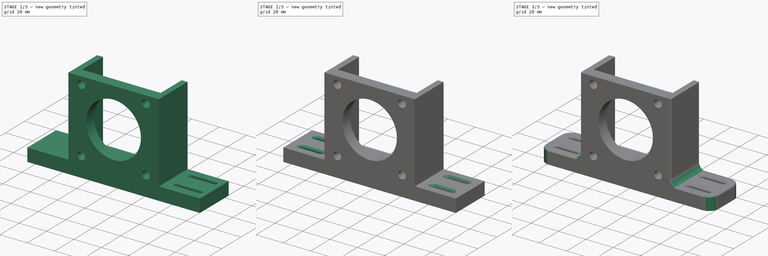
[diagram: build sequence overview — one tinted view per stage of 3, left to right]
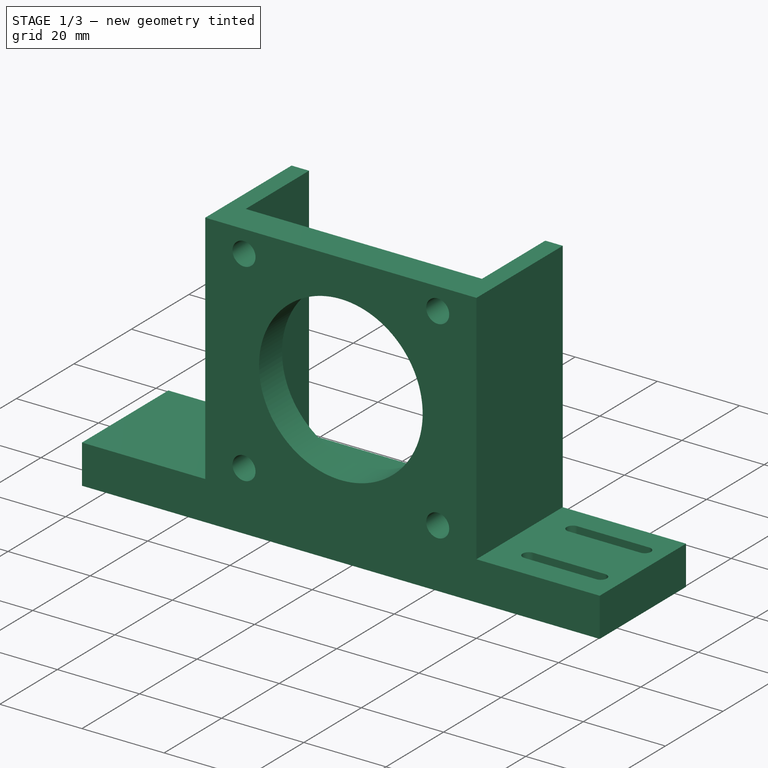
[diagram: stage 1 of 3 — iso view after this stage's code; geometry added in this stage tinted green]
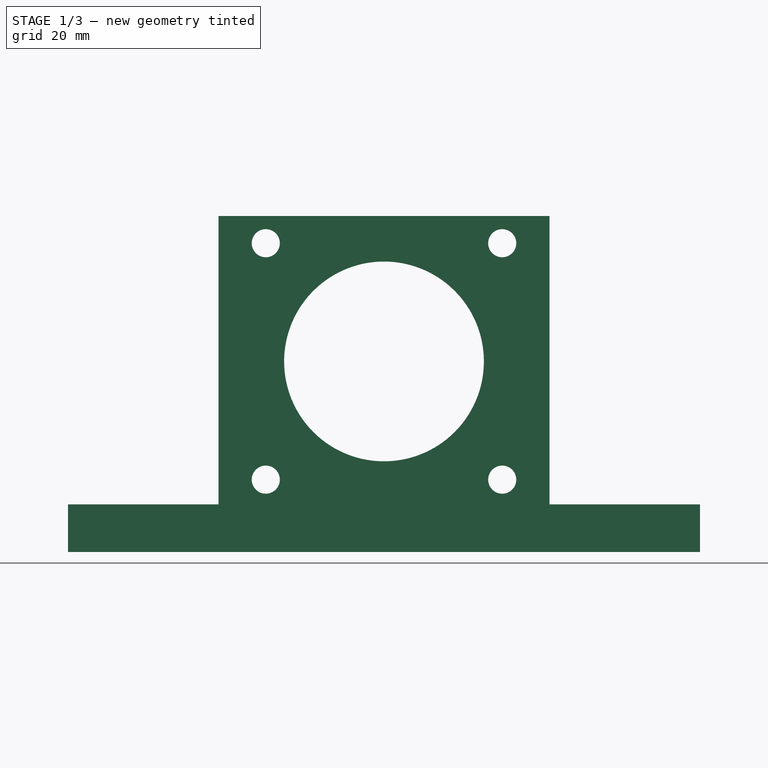
[diagram: stage 1 of 3 — front view after this stage's code; geometry added in this stage tinted green]
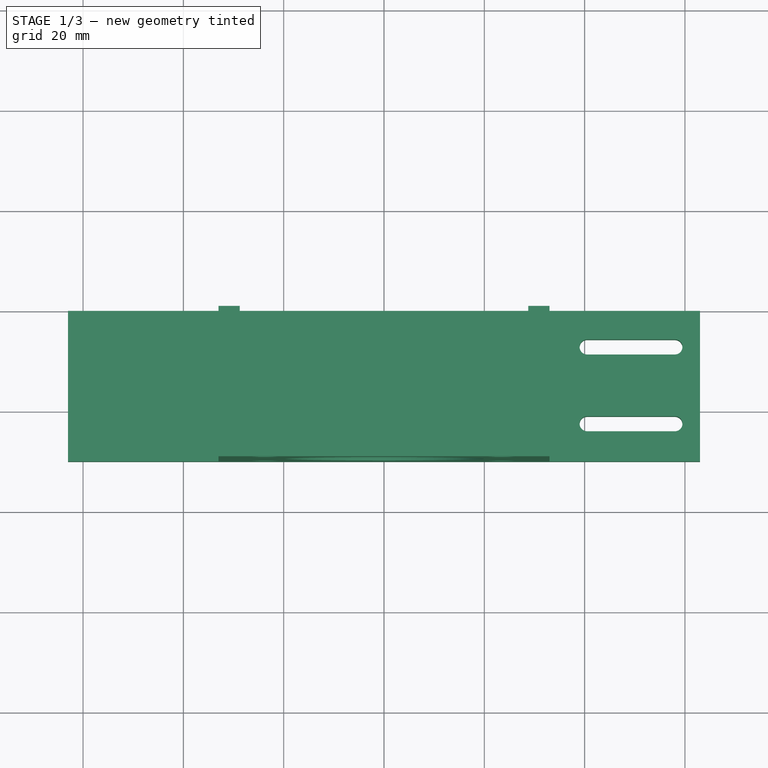
[diagram: stage 1 of 3 — top view after this stage's code; geometry added in this stage tinted green]
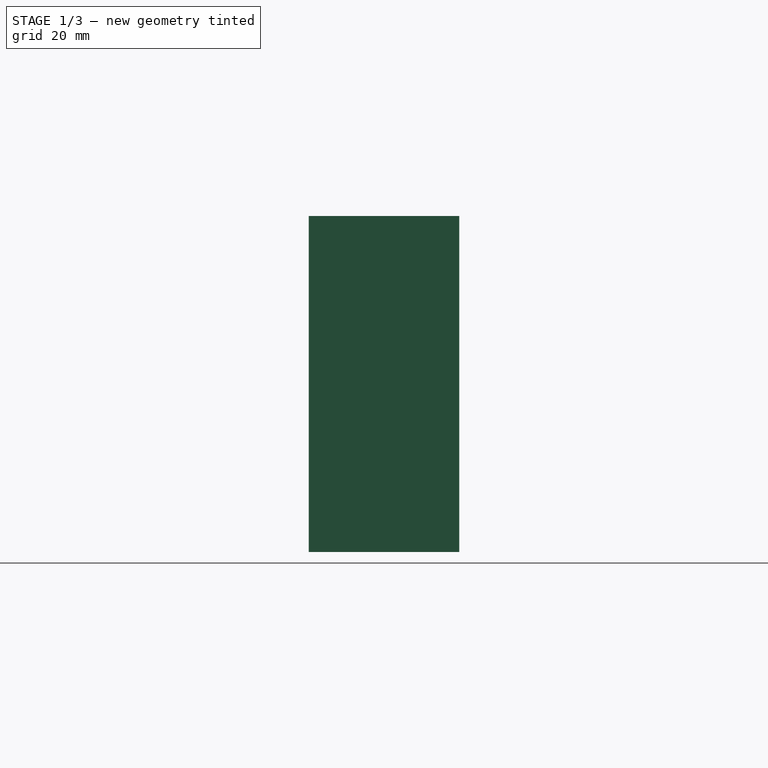
[diagram: stage 1 of 3 — right view after this stage's code; geometry added in this stage tinted green]
FCSTD DOCUMENT  (FreeCAD 1.0R38641 +468 (Git))
Label: 01nema23_bracket_offsettirroir
License: All rights reserved
LicenseURL: https://en.wikipedia.org/wiki/All_rights_reserved
objects: Sketcher::SketchObject×3, PartDesign::Fillet×3, PartDesign::Pocket×2, PartDesign::Pad×1, PartDesign::Mirrored×1, PartDesign::Chamfer×1, PartDesign::Body×1
note: 30 computed .brp shape members not serialized (recipe doc carries the construction recipe); baked Part::Feature solids carry a one-line shape summary decoded from their .brp

FEATURE [Sketcher::SketchObject] Sketch
  ArcFitTolerance = 1e-06
  AttachmentSupport = -> [XZ_Plane]
  FullyConstrained = false
  MakeInternals = false
  MapMode = 5
  Placement = pos=(0,0,0) rot=(1,0,0;1.5708rad)
  expr: Constraints[33] = 57 / 2
  sketch-geometry (17):
    g0: Circle CenterX=-23.57 CenterY=-23.57 CenterZ=0 NormalX=0 NormalY=0 NormalZ=1 AngleXU=0 Radius=2.8
    g1: Circle CenterX=23.57 CenterY=-23.57 CenterZ=0 NormalX=0 NormalY=0 NormalZ=1 AngleXU=0 Radius=2.8
    g2: Circle CenterX=-23.57 CenterY=23.57 CenterZ=0 NormalX=0 NormalY=0 NormalZ=1 AngleXU=0 Radius=2.8
    g3: Circle CenterX=0 CenterY=0 CenterZ=0 NormalX=0 NormalY=0 NormalZ=1 AngleXU=0 Radius=19.9145
    g4: Circle CenterX=23.57 CenterY=23.57 CenterZ=0 NormalX=0 NormalY=0 NormalZ=1 AngleXU=0 Radius=2.8
    g5: Circle [constr] CenterX=0 CenterY=0 CenterZ=0 NormalX=0 NormalY=0 NormalZ=1 AngleXU=0 Radius=22
    g6: LineSegment [constr] StartX=0 StartY=22 StartZ=0 EndX=0 EndY=-38 EndZ=0
    g7: LineSegment StartX=33 StartY=-28.5 StartZ=0 EndX=33 EndY=29 EndZ=0
    g8: LineSegment StartX=33 StartY=29 StartZ=0 EndX=-33 EndY=29 EndZ=0
    g9: LineSegment StartX=-33 StartY=29 StartZ=0 EndX=-33 EndY=-28.5 EndZ=0
    g10: LineSegment [constr] StartX=-33 StartY=-28.5 StartZ=0 EndX=33 EndY=-28.5 EndZ=0
    g11: GeomPoint [constr] X=0 Y=0 Z=0
    g12: LineSegment StartX=-33 StartY=-28.5 StartZ=0 EndX=-63 EndY=-28.5 EndZ=0
    g13: LineSegment StartX=-63 StartY=-28.5 StartZ=0 EndX=-63 EndY=-38 EndZ=0
    g14: LineSegment StartX=-63 StartY=-38 StartZ=0 EndX=63 EndY=-38 EndZ=0
    g15: LineSegment StartX=63 StartY=-38 StartZ=0 EndX=63 EndY=-28.5 EndZ=0
    g16: LineSegment StartX=63 StartY=-28.5 StartZ=0 EndX=33 EndY=-28.5 EndZ=0
  constraints (34):
    c: Diameter(g5) = 44
    c: Coincident(g5,g3)
    c: PointOnObject(g6,g5)
    c: Vertical(g6)
    c: DistanceY(g6,g6) = 60
    c: Coincident(g3,g-1)
    c: PointOnObject(g6,g-2)
    c: Coincident(g7,g8)
    c: Coincident(g8,g9)
    c: Coincident(g9,g10)
    c: Coincident(g10,g7)
    c: Vertical(g7)
    c: Vertical(g9)
    c: Horizontal(g8)
    c: Horizontal(g10)
    c: Coincident(g11,g3)
    c: Horizontal(g12)
    c: Coincident(g12,g13)
    c: Coincident(g13,g14)
    c: Coincident(g14,g15)
    c: Coincident(g15,g16)
    c: Vertical(g15)
    c: Vertical(g13)
    c: Horizontal(g16)
    c: PointOnObject(g6,g14)
    c: Coincident(g9,g12)
    c: Coincident(g7,g16)
    c: Symmetric(g13,g14,g-2)
    c: Diameter(g0) = 5.6
    c: DistanceX(g8,g8) = 66
    c: Equal(g12,g16)
    c: DistanceX(g16,g16) = 30
    c: DistanceY(g3,g7) = 29
    c: DistanceY(g7,g3) = 28.5
FEATURE [PartDesign::Pad] Pad
  Direction = (0,-1,2e-16)
  Length = 30
  Length2 = 10
  Placement = pos=(0,0,0) rot=(1,0,0;1.5708rad)
  Profile = -> Sketch
  ReferenceAxis = -> Sketch [N_Axis]
  Refine = true
  Suppressed = false
  Type = 0
FEATURE [Sketcher::SketchObject] Sketch001
  ArcFitTolerance = 1e-06
  AttachmentSupport = -> [Pad]
  ExternalGeometry = -> [Pad]
  FullyConstrained = true
  MakeInternals = false
  MapMode = 5
  Placement = pos=(0,-2.1e-15,0) rot=(-1,0,0;1.5708rad)
  sketch-geometry (5):
    g0: LineSegment StartX=28.75 StartY=29 StartZ=0 EndX=-28.75 EndY=29 EndZ=0
    g1: LineSegment StartX=-28.75 StartY=29 StartZ=0 EndX=-28.75 EndY=-29 EndZ=0
    g2: LineSegment StartX=-28.75 StartY=-29 StartZ=0 EndX=28.75 EndY=-29 EndZ=0
    g3: LineSegment StartX=28.75 StartY=-29 StartZ=0 EndX=28.75 EndY=29 EndZ=0
    g4: GeomPoint [constr] X=0 Y=0 Z=0
  constraints (12):
    c: Coincident(g0,g1)
    c: Coincident(g1,g2)
    c: Coincident(g2,g3)
    c: Coincident(g3,g0)
    c: Horizontal(g0)
    c: Horizontal(g2)
    c: Vertical(g1)
    c: Vertical(g3)
    c: Symmetric(g2,g0,g4)
    c: Coincident(g4,g-1)
    c: PointOnObject(g1,g-4)
    c: DistanceX(g2,g2) = 57.5
FEATURE [PartDesign::Pocket] Pocket
  BaseFeature = -> Pad
  Direction = (0,-1,-2e-16)
  Length = 22
  Length2 = 5
  Placement = pos=(0,0,0) rot=(1,0,0;1.5708rad)
  Profile = -> Sketch001
  ReferenceAxis = -> Sketch001 [N_Axis]
  Refine = true
  Suppressed = false
  Type = 0
FEATURE [Sketcher::SketchObject] Sketch002
  ArcFitTolerance = 1e-06
  AttachmentSupport = -> [Pocket]
  ExternalGeometry = -> [Pocket]
  FullyConstrained = false
  MakeInternals = false
  MapMode = 5
  Placement = pos=(0,-6.3e-15,-28.5) rot=(0,0,1;3.14159rad)
  sketch-geometry (11):
    g0: LineSegment [constr] StartX=-63 StartY=15 StartZ=0 EndX=101.936 EndY=15 EndZ=0
    g1: LineSegment [constr] StartX=-108.896 StartY=22.5 StartZ=0 EndX=107.919 EndY=22.5 EndZ=0
    g2: LineSegment [constr] StartX=-105.958 StartY=7.5 StartZ=0 EndX=119.682 EndY=7.5 EndZ=0
    g3: ArcOfCircle CenterX=-58 CenterY=22.5 CenterZ=0 NormalX=0 NormalY=0 NormalZ=1 AngleXU=0 Radius=1.5 StartAngle=1.5708 EndAngle=4.71239
    g4: ArcOfCircle CenterX=-40.5 CenterY=22.5 CenterZ=0 NormalX=0 NormalY=0 NormalZ=1 AngleXU=0 Radius=1.5 StartAngle=4.71239 EndAngle=7.85398
    g5: LineSegment StartX=-58 StartY=24 StartZ=0 EndX=-40.5 EndY=24 EndZ=0
    g6: LineSegment StartX=-58 StartY=21 StartZ=0 EndX=-40.5 EndY=21 EndZ=0
    g7: ArcOfCircle CenterX=-58 CenterY=7.19032 CenterZ=0 NormalX=0 NormalY=0 NormalZ=1 AngleXU=0 Radius=1.5 StartAngle=1.5708 EndAngle=4.71239
    g8: ArcOfCircle CenterX=-40.5 CenterY=7.19032 CenterZ=0 NormalX=0 NormalY=0 NormalZ=1 AngleXU=0 Radius=1.5 StartAngle=4.71239 EndAngle=7.85398
    g9: LineSegment StartX=-58 StartY=8.69032 StartZ=0 EndX=-40.5 EndY=8.69032 EndZ=0
    g10: LineSegment StartX=-58 StartY=5.69032 StartZ=0 EndX=-40.5 EndY=5.69032 EndZ=0
  constraints (23):
    c: Symmetric(g-3,g-4,g0)
    c: Horizontal(g1)
    c: Symmetric(g0,g-3,g1)
    c: Symmetric(g0,g-4,g2)
    c: Tangent(g3,g5) = 1.5708
    c: Tangent(g3,g6) = -1.5708
    c: Tangent(g4,g5) = 1.5708
    c: Tangent(g4,g6) = -1.5708
    c: Equal(g3,g4)
    c: Horizontal(g6)
    c: PointOnObject(g3,g1)
    c: Tangent(g7,g9) = 1.5708
    c: Tangent(g7,g10) = -1.5708
    c: Tangent(g8,g9) = 1.5708
    c: Tangent(g8,g10) = -1.5708
    c: Equal(g7,g8)
    c: Horizontal(g10)
    c: Equal(g4,g8)
    c: Radius(g4) = 1.5
    c: Vertical(g8,g4)
    c: DistanceX(g4,g-3) = 7.5
    c: DistanceX(g-3,g3) = 5
    c: Vertical(g3,g7)
FEATURE [PartDesign::Pocket] Pocket001
  BaseFeature = -> Pocket
  Direction = (0,0,-1)
  Length = 5
  Length2 = 5
  Placement = pos=(0,0,0) rot=(1,0,0;1.5708rad)
  Profile = -> Sketch002
  ReferenceAxis = -> Sketch002 [N_Axis]
  Refine = true
  Suppressed = false
  Type = 1
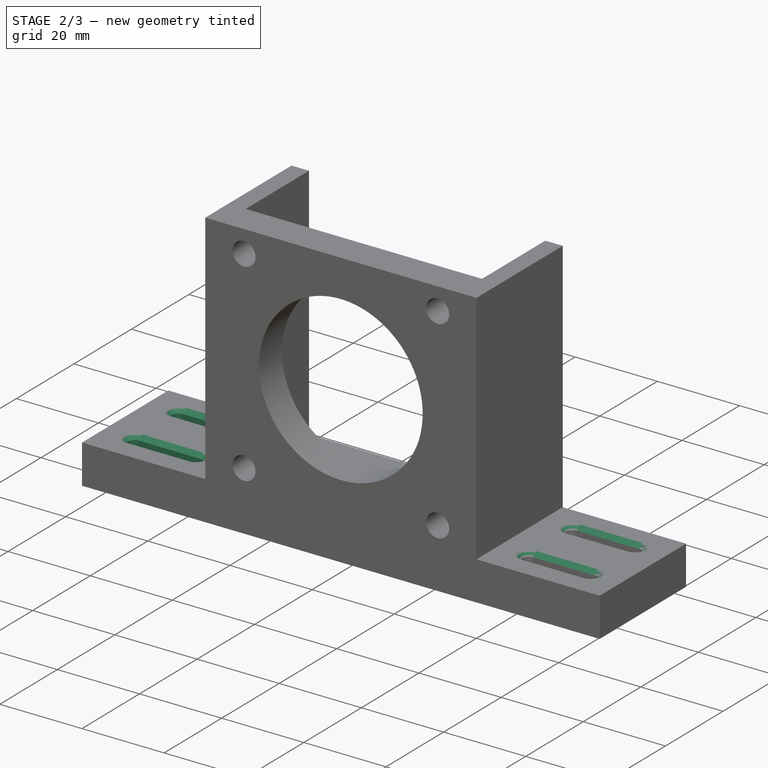
[diagram: stage 2 of 3 — iso view after this stage's code; geometry added in this stage tinted green]
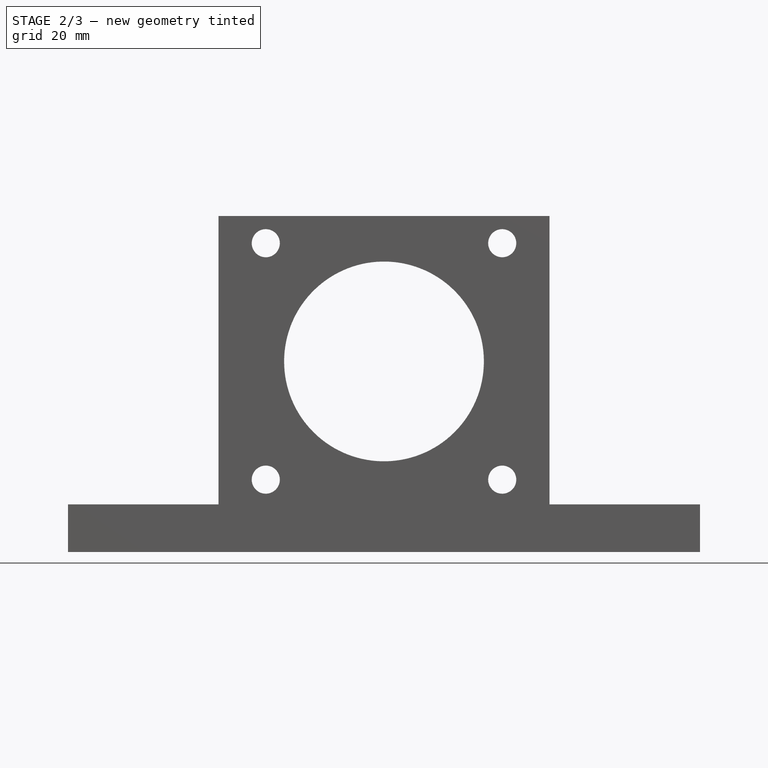
[diagram: stage 2 of 3 — front view after this stage's code; geometry added in this stage tinted green]
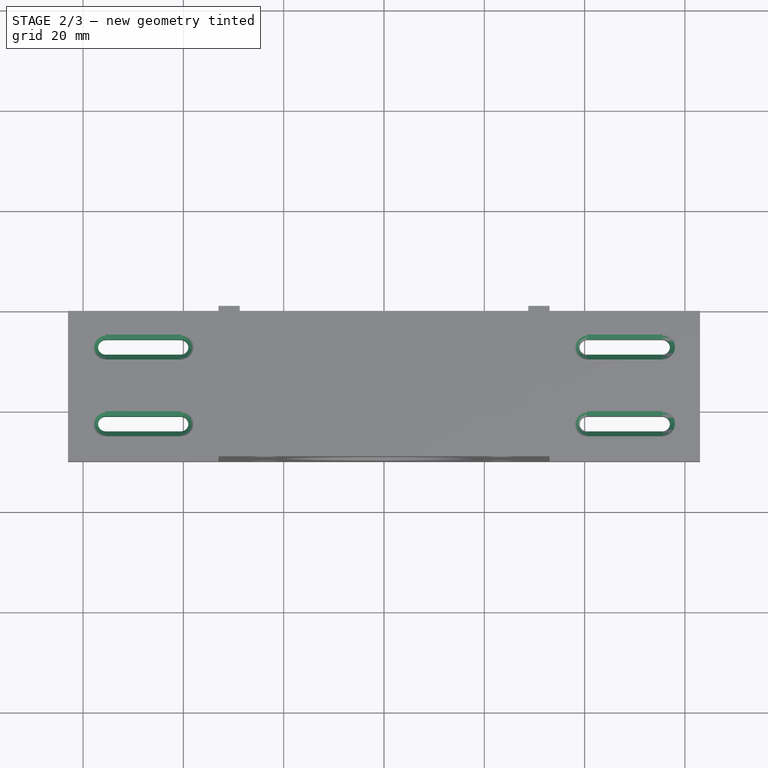
[diagram: stage 2 of 3 — top view after this stage's code; geometry added in this stage tinted green]
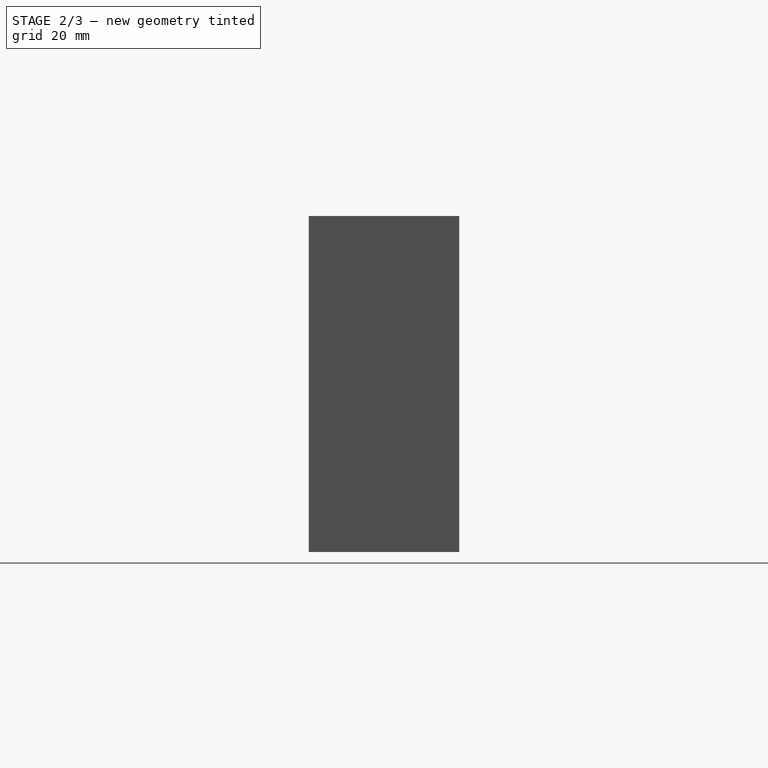
[diagram: stage 2 of 3 — right view after this stage's code; geometry added in this stage tinted green]
FEATURE [PartDesign::Mirrored] Mirrored
  BaseFeature = -> Pocket001
  MirrorPlane = -> YZ_Plane
  Placement = pos=(0,0,0) rot=(1,0,0;1.5708rad)
  Refine = true
  Suppressed = false
  TransformMode = 0
FEATURE [PartDesign::Chamfer] Chamfer
  Angle = 45
  Base = -> Mirrored [Edge92,Edge96,Edge97,Edge94,Edge89,Edge98,Edge101,Edge103,Vertex80,Edge105,Edge106,Vertex70,Edge86,Edge84,Edge82,Edge80,Edge88,Edge72,Edge73,Edge79,Edge75,Edge77]
  BaseFeature = -> Mirrored
  ChamferType = 0
  FlipDirection = false
  Placement = pos=(0,0,0) rot=(1,0,0;1.5708rad)
  Refine = true
  Size = 1
  Size2 = 1
  SupportTransform = false
  Suppressed = false
  UseAllEdges = false
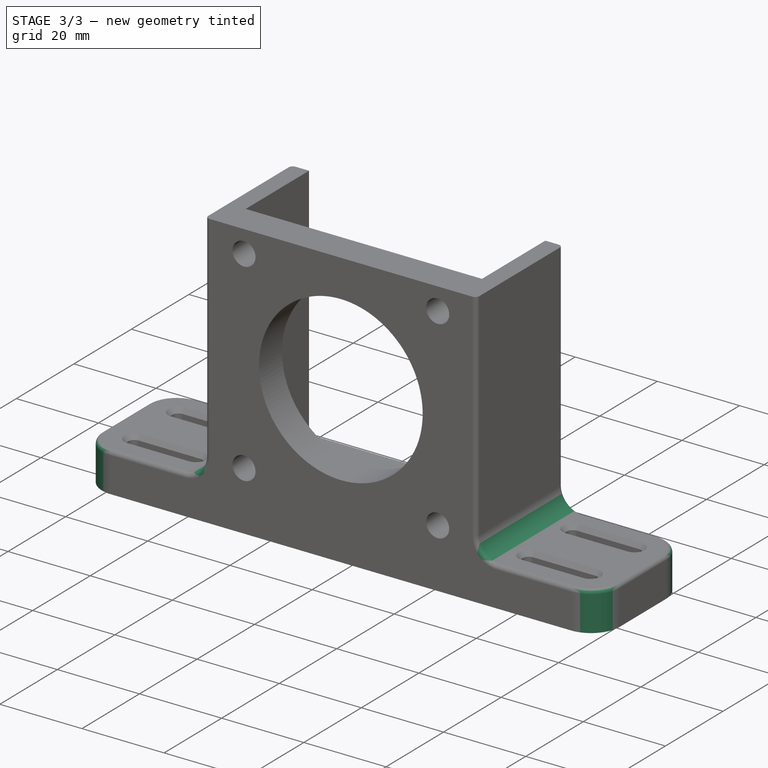
[diagram: stage 3 of 3 — iso view after this stage's code; geometry added in this stage tinted green]
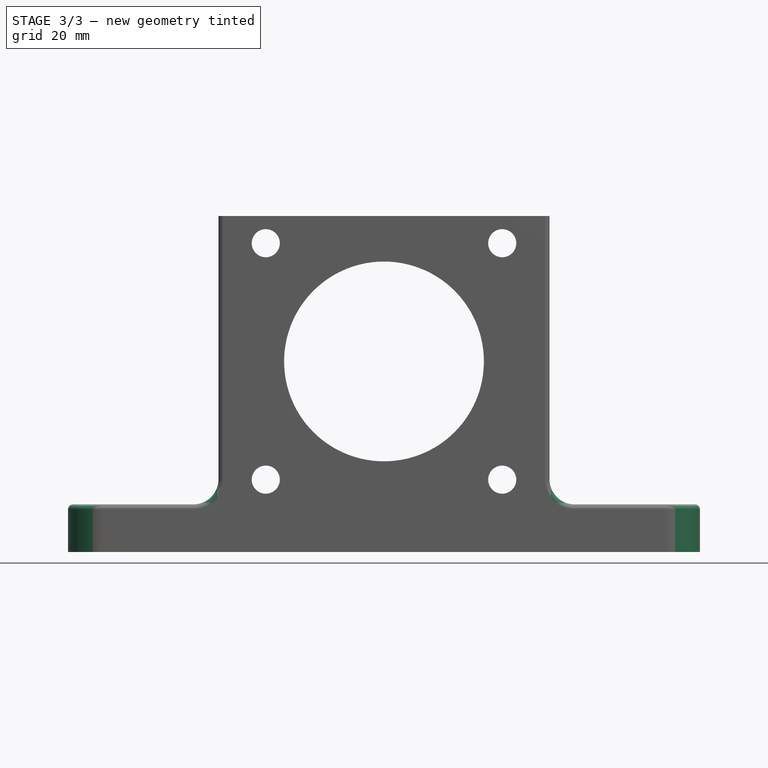
[diagram: stage 3 of 3 — front view after this stage's code; geometry added in this stage tinted green]
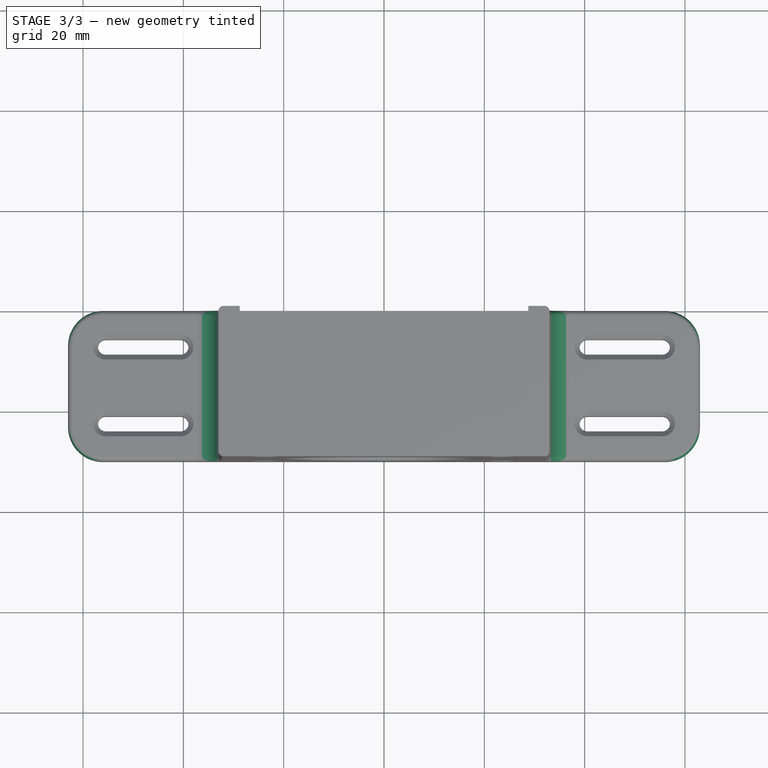
[diagram: stage 3 of 3 — top view after this stage's code; geometry added in this stage tinted green]
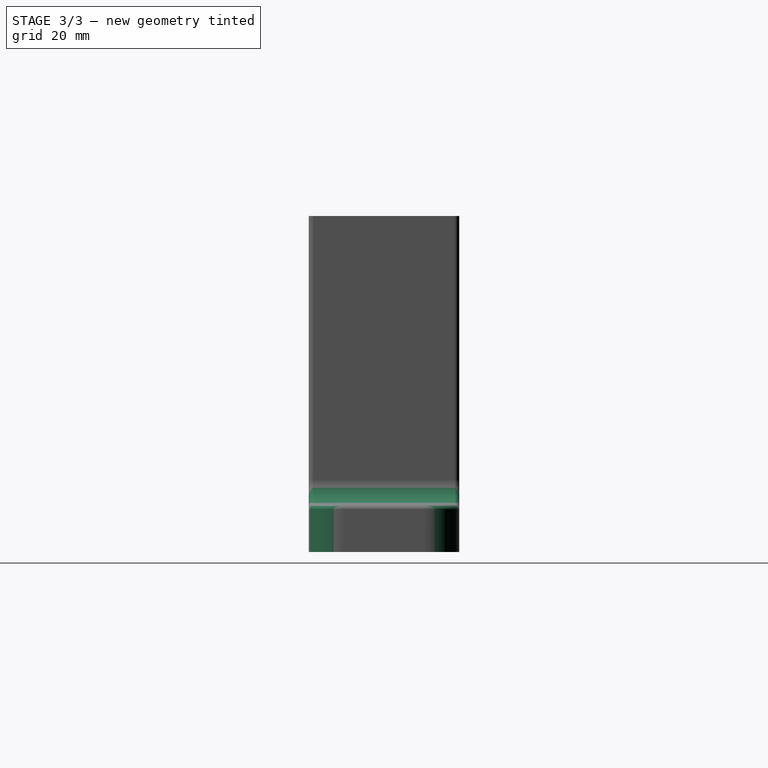
[diagram: stage 3 of 3 — right view after this stage's code; geometry added in this stage tinted green]
FEATURE [PartDesign::Fillet] Fillet001
  Base = -> Chamfer [Edge45,Edge110]
  BaseFeature = -> Chamfer
  Placement = pos=(0,0,0) rot=(1,0,0;1.5708rad)
  Radius = 5
  Refine = true
  SupportTransform = false
  Suppressed = false
  UseAllEdges = false
FEATURE [PartDesign::Fillet] Fillet002
  Base = -> Fillet001 [Edge31,Edge24,Edge20,Edge38]
  BaseFeature = -> Fillet001
  Placement = pos=(0,0,0) rot=(1,0,0;1.5708rad)
  Radius = 7
  Refine = true
  SupportTransform = false
  Suppressed = false
  UseAllEdges = false
FEATURE [PartDesign::Fillet] Fillet
  Base = -> Fillet002 [Edge21,Edge27]
  BaseFeature = -> Fillet002
  Placement = pos=(0,0,0) rot=(1,0,0;1.5708rad)
  Radius = 1
  Refine = true
  SupportTransform = false
  Suppressed = false
  UseAllEdges = false
FEATURE [PartDesign::Body] Body
  AllowCompound = false
  Group = -> [Sketch,Pad,Sketch001,Pocket,Sketch002,Pocket001,Mirrored,Chamfer,Fillet001,Fillet002,Fillet]
  Origin = -> Origin
  Tip = -> Fillet
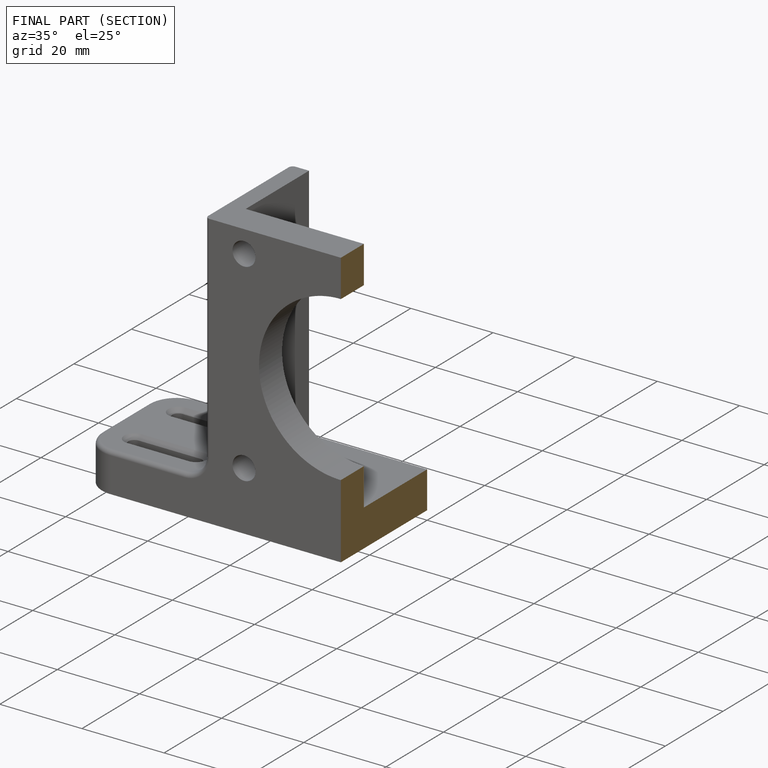
[diagram: finished part — half-section view (interior)]
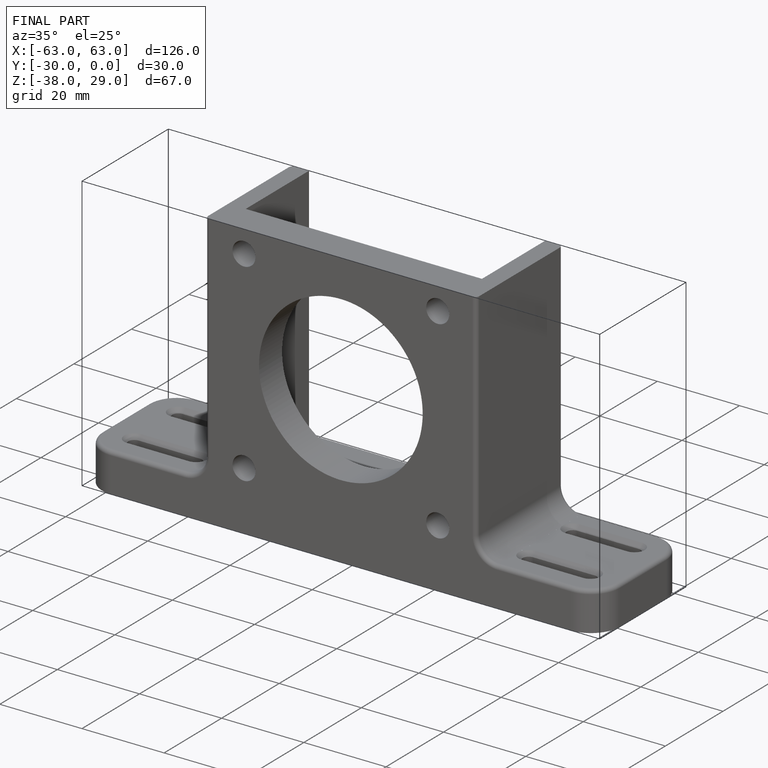
[diagram: finished part — iso view with bounding-box wireframe]
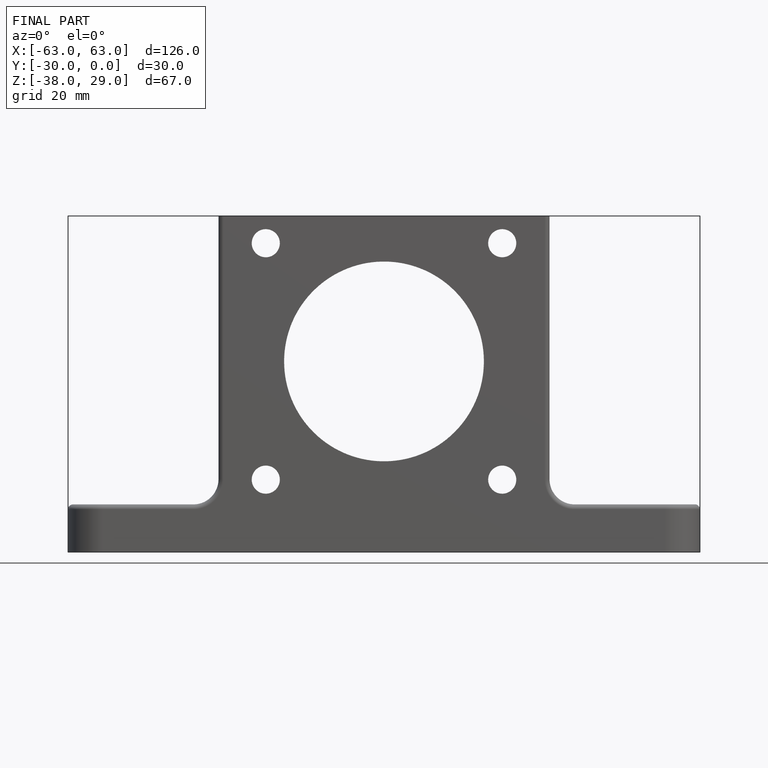
[diagram: finished part — front view with bounding-box wireframe]
